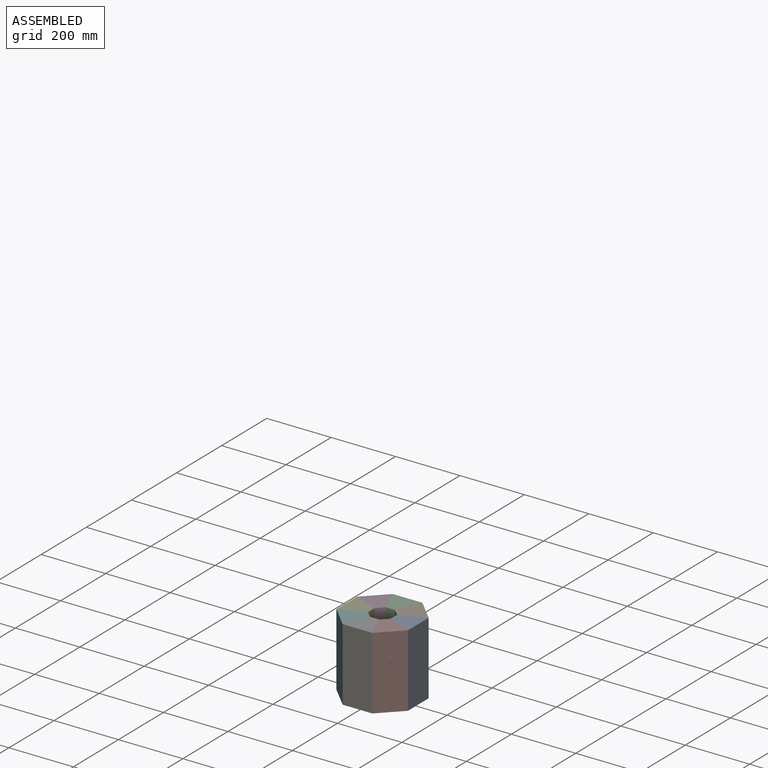
[diagram: assembled view]
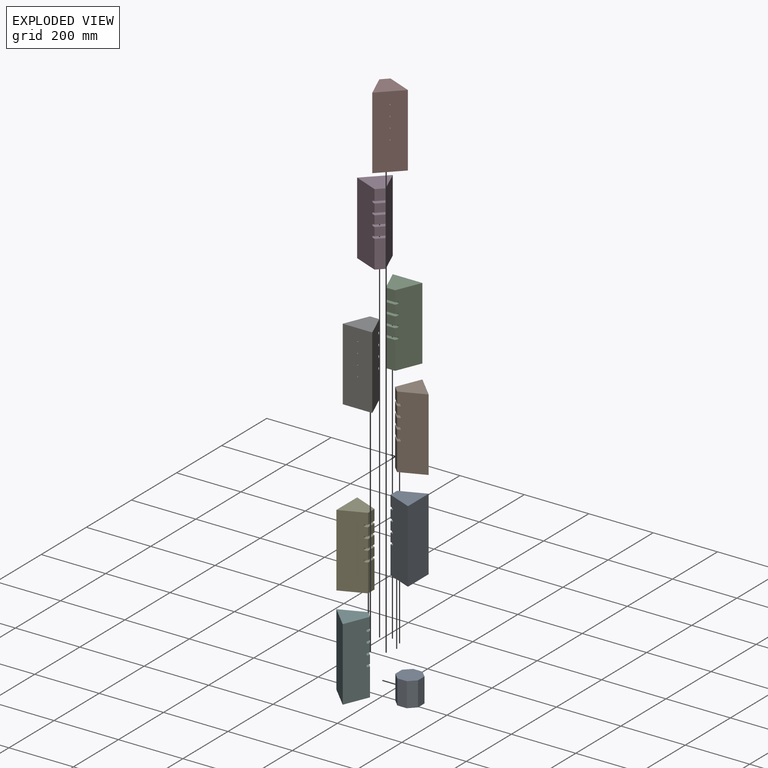
[diagram: exploded view]
GUIDED TOUR — FREECAD ASSEMBLY "OCT-CHMBR-A"

This assembly has 9 components, labeled P0..P8 below (a component is one placed body or linked part; the same part can appear more than once), held together by 8 modeled joints. A joint is a constraint between two components; its type names the relative motion it leaves free:
  FASTENED — locks the two components together rigidly (no relative motion).
Axis/direction vectors are unit vectors and 'through' points are millimeter coordinates, both in the assembly's world frame.

MATES
  1. FASTENED [Fixed] "Joint": P8 <-> P6, direction (0.000, 0.000, 1.000) through (-14.50, -35.00, 0.00) mm
  2. FASTENED [Fixed] "Joint001": P8 <-> P7, direction (0.000, 0.000, 1.000) through (14.50, -35.00, 0.00) mm
  3. FASTENED [Fixed] "Joint002": P8 <-> P0, direction (0.000, 0.000, 1.000) through (35.00, -14.50, 0.00) mm
  4. FASTENED [Fixed] "Joint003": P8 <-> P1, direction (0.000, 0.000, 1.000) through (35.00, 14.50, 0.00) mm
  5. FASTENED [Fixed] "Joint004": P2 <-> P8, direction (0.000, 0.000, 1.000) through (14.50, 35.00, 0.00) mm
  6. FASTENED [Fixed] "Joint005": P3 <-> P8, direction (0.000, 0.000, 1.000) through (-14.50, 35.00, 0.00) mm
  7. FASTENED [Fixed] "Joint006": P4 <-> P8, direction (0.000, 0.000, 1.000) through (-35.00, 14.50, 0.00) mm
  8. FASTENED [Fixed] "Joint007": P5 <-> P8, direction (0.000, 0.000, 1.000) through (-35.00, -14.50, 0.00) mm

ASSEMBLY ORDER
  1. P5 — the base component [order verified]
  2. P0 [order verified]
  3. P1 [order verified]
  4. P8 [order verified]
  5. P2 [order verified]
  6. P3 [order verified]
  7. P4 [order verified]
  8. P6 [order verified]
  9. P7 [order verified]
Order-tag legend:
  [order verified] — this step's position reverses a verified removal order: the component was checked to insert without passing through the ones already placed.

Of the 9 components, 9 carry a construction recipe — the FreeCAD feature program (sketches with constraints, then the solid features that consume them) that regenerates the part from scratch, quoted from this document or from the linked companion document it references; the rest are supplied as boundary geometry only. The tour below walks the components in assembly order: each is shown spotlighted twice — in the assembled view, then in the exploded view, where a leader line traces a displaced component back to its assembled socket (components that stay in place when exploded have no leader line; saturated green if recipe-attached, orange if geometry-only; every other component desaturated gray) — followed by its recipe or geometry summary and the mates that hold it.
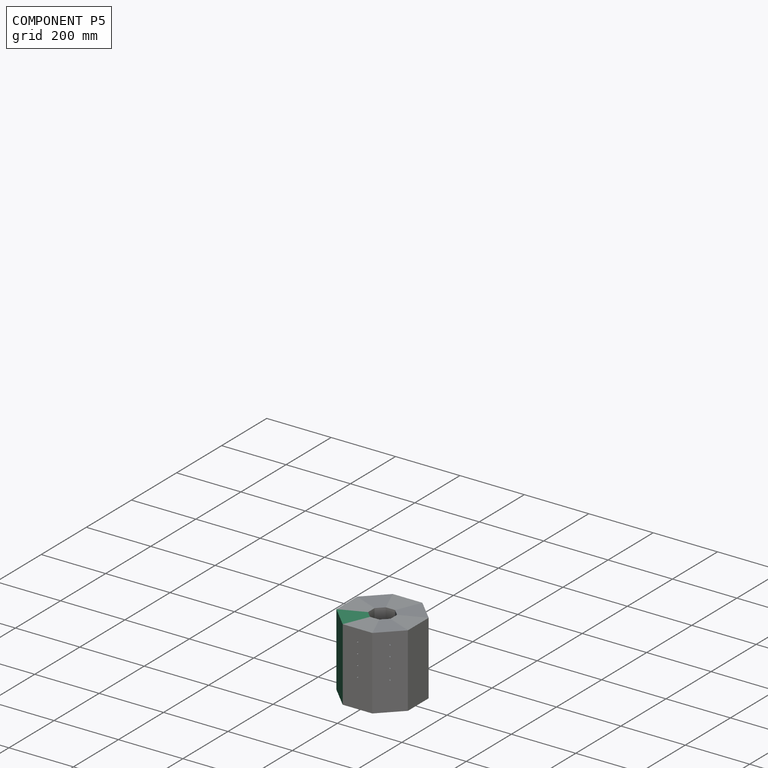
[diagram: component P5 — assembled]
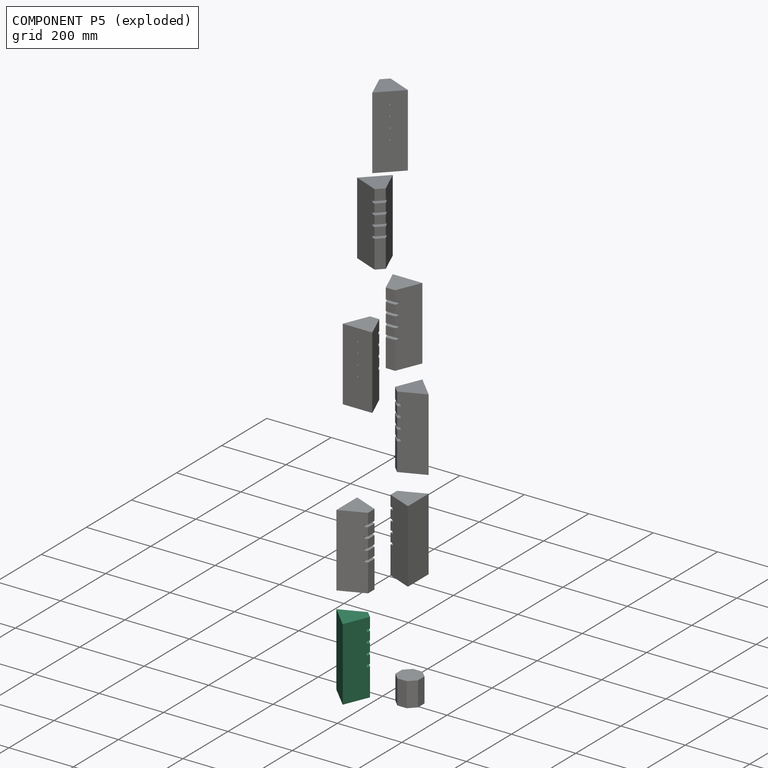
[diagram: component P5 — exploded]
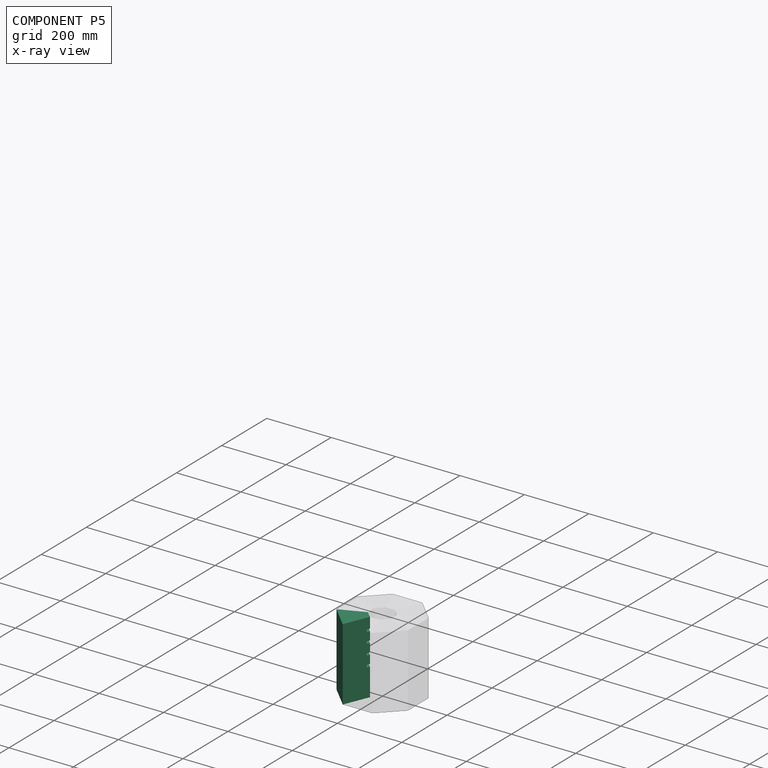
[diagram: component P5 — x-ray view]
COMPONENT P5 — same part as P0; its construction recipe is shown at P0.
Held by: FASTENED mate "Joint007" to P8.
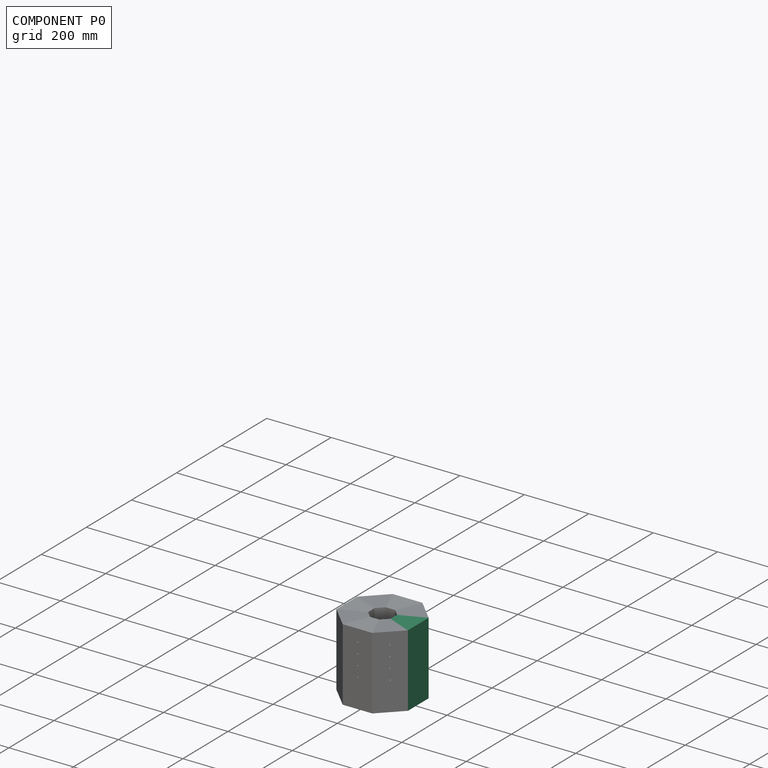
[diagram: component P0 — assembled]
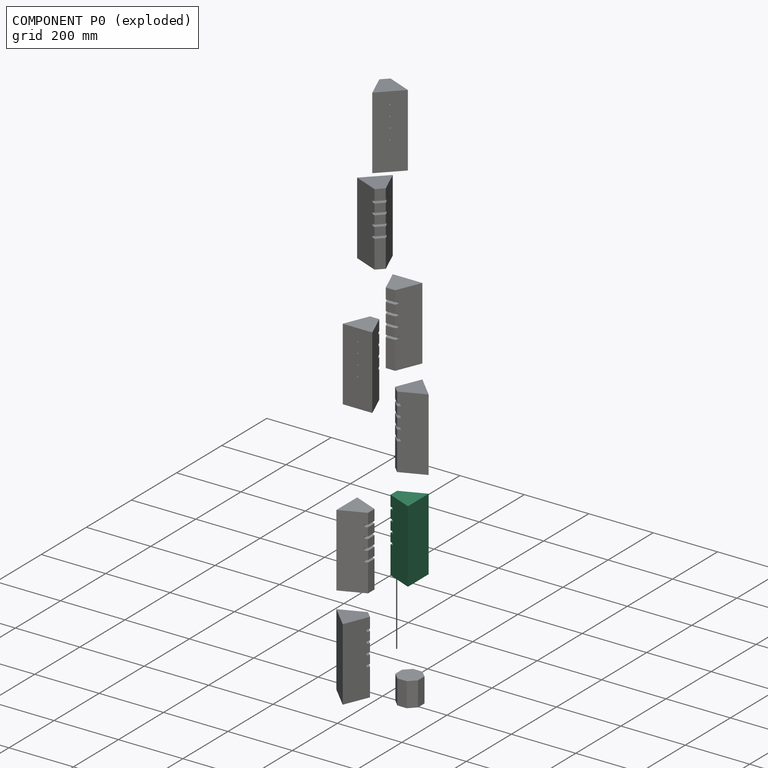
[diagram: component P0 — exploded]
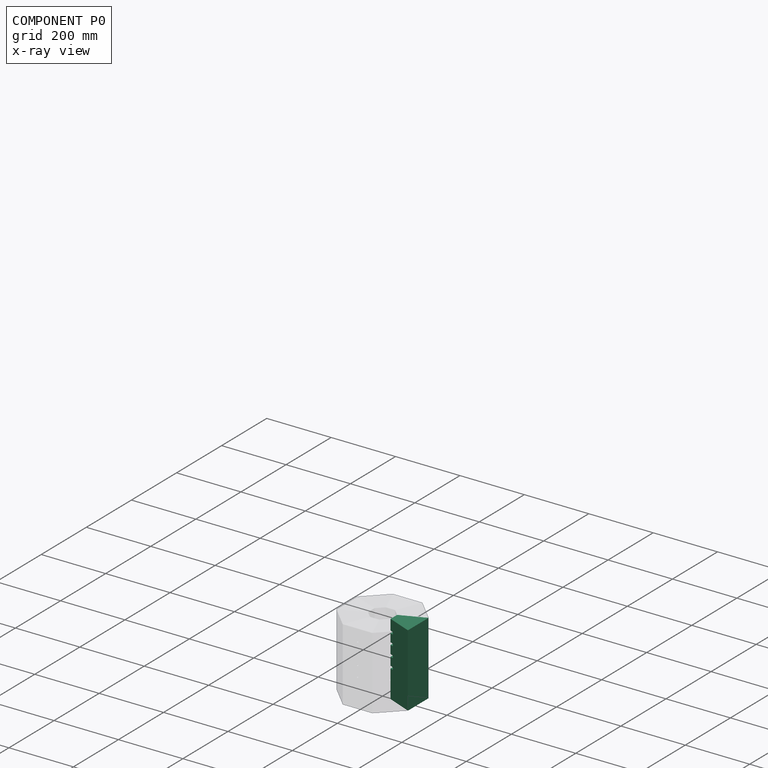
[diagram: component P0 — x-ray view]
COMPONENT P0 — recipe-attached ("OCT-CHBRK-AA", modeled in this document).
Held by: FASTENED mate "Joint002" to P8.
Construction recipe (the document's own serialized feature program — sketch geometry with constraints, then the solid features built on it; lengths are millimeters unless a unit is written):

FEATURE [Sketcher::SketchObject] Sketch
  ArcFitTolerance = 1e-06
  AttachmentSupport = -> [XY_Plane]
  FullyConstrained = true
  MakeInternals = false
  MapMode = 5
  expr: Constraints[53] = <<dims>>.brickDepth
  expr: Constraints[55] = <<dims>>.chamberDiameter
  sketch-geometry (20):
    g0: LineSegment StartX=45.9777 StartY=111 StartZ=0 EndX=-45.9777 EndY=111 EndZ=0
    g1: LineSegment [constr] StartX=-45.9777 StartY=111 StartZ=0 EndX=-111 EndY=45.9777 EndZ=0
    g2: LineSegment [constr] StartX=-111 StartY=45.9777 StartZ=0 EndX=-111 EndY=-45.9777 EndZ=0
    g3: LineSegment [constr] StartX=-111 StartY=-45.9777 StartZ=0 EndX=-45.9777 EndY=-111 EndZ=0
    g4: LineSegment [constr] StartX=-45.9777 StartY=-111 StartZ=0 EndX=45.9777 EndY=-111 EndZ=0
    g5: LineSegment [constr] StartX=45.9777 StartY=-111 StartZ=0 EndX=111 EndY=-45.9777 EndZ=0
    g6: LineSegment [constr] StartX=111 StartY=-45.9777 StartZ=0 EndX=111 EndY=45.9777 EndZ=0
    g7: LineSegment [constr] StartX=111 StartY=45.9777 StartZ=0 EndX=45.9777 EndY=111 EndZ=0
    g8: Circle [constr] CenterX=0 CenterY=0 CenterZ=0 NormalX=0 NormalY=0 NormalZ=1 AngleXU=0 Radius=120.146
    g9: LineSegment [constr] StartX=-14.4975 StartY=35 StartZ=0 EndX=-35 EndY=14.4975 EndZ=0
    g10: LineSegment [constr] StartX=-35 StartY=14.4975 StartZ=0 EndX=-35 EndY=-14.4975 EndZ=0
    g11: LineSegment [constr] StartX=-35 StartY=-14.4975 StartZ=0 EndX=-14.4975 EndY=-35 EndZ=0
    g12: LineSegment [constr] StartX=-14.4975 StartY=-35 StartZ=0 EndX=14.4975 EndY=-35 EndZ=0
    g13: LineSegment [constr] StartX=14.4975 StartY=-35 StartZ=0 EndX=35 EndY=-14.4975 EndZ=0
    g14: LineSegment [constr] StartX=35 StartY=-14.4975 StartZ=0 EndX=35 EndY=14.4975 EndZ=0
    g15: LineSegment [constr] StartX=35 StartY=14.4975 StartZ=0 EndX=14.4975 EndY=35 EndZ=0
    g16: LineSegment StartX=14.4975 StartY=35 StartZ=0 EndX=-14.4975 EndY=35 EndZ=0
    g17: Circle [constr] CenterX=0 CenterY=0 CenterZ=0 NormalX=0 NormalY=0 NormalZ=1 AngleXU=0 Radius=37.8837
    g18: LineSegment StartX=-45.9777 StartY=111 StartZ=0 EndX=-14.4975 EndY=35 EndZ=0
    g19: LineSegment StartX=14.4975 StartY=35 StartZ=0 EndX=45.9777 EndY=111 EndZ=0
  constraints (44):
    c: Coincident(g0,g1)
    c: Coincident(g1,g2)
    c: Coincident(g2,g3)
    c: Coincident(g3,g4)
    c: Coincident(g4,g5)
    c: Coincident(g5,g6)
    c: Coincident(g6,g7)
    c: Coincident(g7,g0)
    c: Equal(g0, g1-g7) x7
    c: PointOnObject(g0,g8)
    c: PointOnObject(g1,g8)
    c: PointOnObject(g2,g8)
    c: PointOnObject(g3,g8)
    c: PointOnObject(g4,g8)
    c: PointOnObject(g5,g8)
    c: PointOnObject(g6,g8)
    c: PointOnObject(g7,g8)
    c: Coincident(g8,g-1)
    c: Horizontal(g0)
    c: Coincident(g9,g10)
    c: Coincident(g10,g11)
    c: Coincident(g11,g12)
    c: Coincident(g12,g13)
    c: Coincident(g13,g14)
    c: Coincident(g14,g15)
    c: Coincident(g15,g16)
    c: Coincident(g16,g9)
    c: Equal(g9, g10-g16) x7
    c: PointOnObject(g9,g17)
    c: PointOnObject(g10,g17)
    c: PointOnObject(g11,g17)
    c: PointOnObject(g12,g17)
    c: PointOnObject(g13,g17)
    c: PointOnObject(g14,g17)
    c: PointOnObject(g15,g17)
    c: PointOnObject(g16,g17)
    c: Coincident(g17,g8)
    c: Coincident(g18,g0)
    c: Coincident(g18,g9)
    c: Coincident(g19,g15)
    c: Coincident(g19,g0)
    c: DistanceY(g9,g0) = 76
    c: Horizontal(g16)
    c: DistanceY(g11,g9) = 70
FEATURE [PartDesign::Pad] Pad
  Direction = (0,0,1)
  Length = 226
  Length2 = 10
  Profile = -> Sketch
  ReferenceAxis = -> Sketch [N_Axis]
  Suppressed = false
  Type = 0
  expr: Length = <<dims>>.brickHeight
FEATURE [Sketcher::SketchObject] Sketch001
  ArcFitTolerance = 1e-06
  AttachmentSupport = -> [YZ_Plane]
  FullyConstrained = true
  MakeInternals = false
  MapMode = 5
  Placement = pos=(0,0,0) rot=(0.57735,0.57735,0.57735;2.0944rad)
  expr: Constraints[6] = <<dims>>.loopDiameter / 2
  expr: Constraints[7] = <<dims>>.bottomGrooveHeight
  expr: Constraints[8] = <<dims>>.coilOD
  sketch-geometry (4):
    g0: ArcOfCircle CenterX=0 CenterY=90 CenterZ=0 NormalX=0 NormalY=0 NormalZ=1 AngleXU=0 Radius=3.52 StartAngle=1.5708 EndAngle=4.71239
    g1: ArcOfCircle CenterX=41.5 CenterY=90 CenterZ=0 NormalX=0 NormalY=0 NormalZ=1 AngleXU=0 Radius=3.52 StartAngle=4.71239 EndAngle=7.85398
    g2: LineSegment StartX=2e-16 StartY=93.52 StartZ=0 EndX=41.5 EndY=93.52 EndZ=0
    g3: LineSegment StartX=-6e-16 StartY=86.48 StartZ=0 EndX=41.5 EndY=86.48 EndZ=0
  constraints (10):
    c: Tangent(g0,g2) = 1.5708
    c: Tangent(g0,g3) = -1.5708
    c: Tangent(g1,g2) = 1.5708
    c: Tangent(g1,g3) = -1.5708
    c: Equal(g0,g1)
    c: Horizontal(g2)
    c: DistanceX(g-1,g1) = 41.5
    c: DistanceY(g-1,g1) = 90
    c: DistanceY(g0,g0) = 7.04
    c: PointOnObject(g0,g-2)
FEATURE [PartDesign::Pocket] Pocket  label="element groove"
  BaseFeature = -> Pad
  Direction = (-1,0,0)
  Length = 5
  Length2 = 5
  Midplane = true
  Profile = -> Sketch001
  ReferenceAxis = -> Sketch001 [N_Axis]
  Suppressed = false
  Type = 1
FEATURE [PartDesign::LinearPattern] LinearPattern
  BaseFeature = -> Pocket
  Direction = -> Z_Axis
  Length = 99
  Mode = 1
  Occurrences = 4
  Offset = 33
  Originals = -> [Pocket]
  Suppressed = false
  TransformMode = 0
  expr: Occurrences = <<dims>>.elementCount
  expr: Offset = <<dims>>.elementSpacing
FEATURE [PartDesign::Body] Body  label="OCT-CHBRK-AA"
  AllowCompound = false
  Group = -> [Sketch,Pad,Sketch001,Pocket,LinearPattern]
  Origin = -> Origin
  Tip = -> LinearPattern
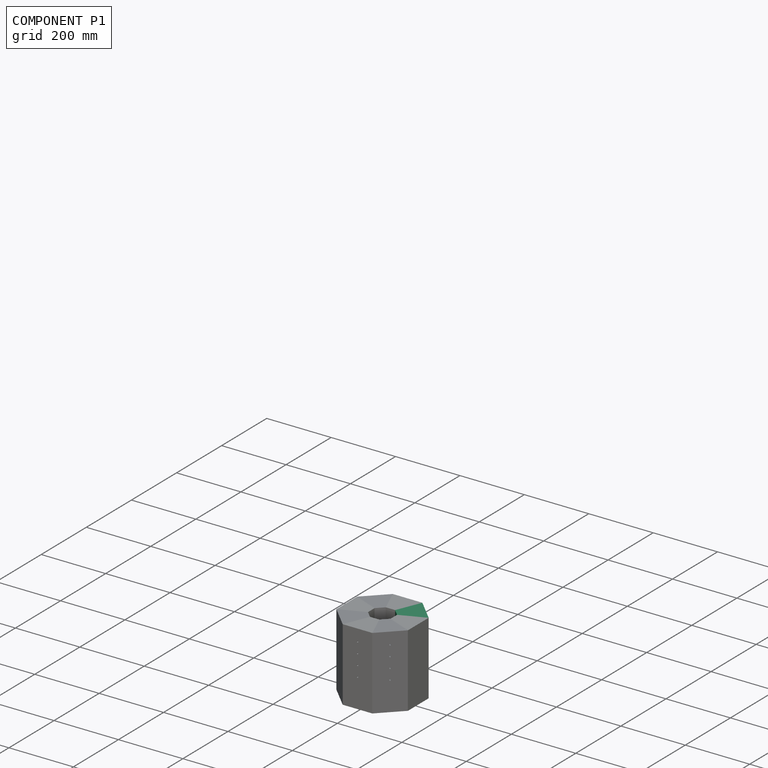
[diagram: component P1 — assembled]
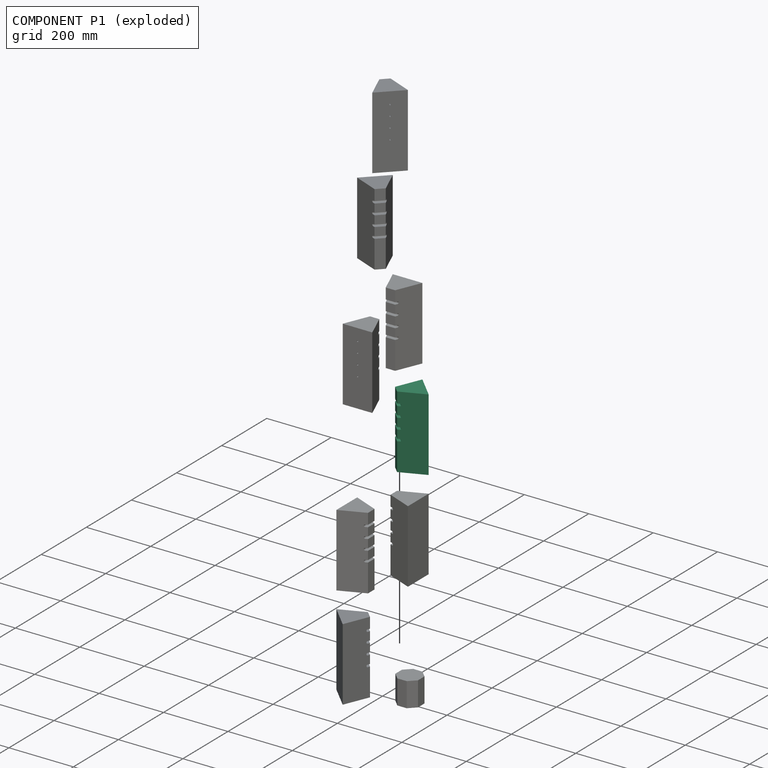
[diagram: component P1 — exploded]
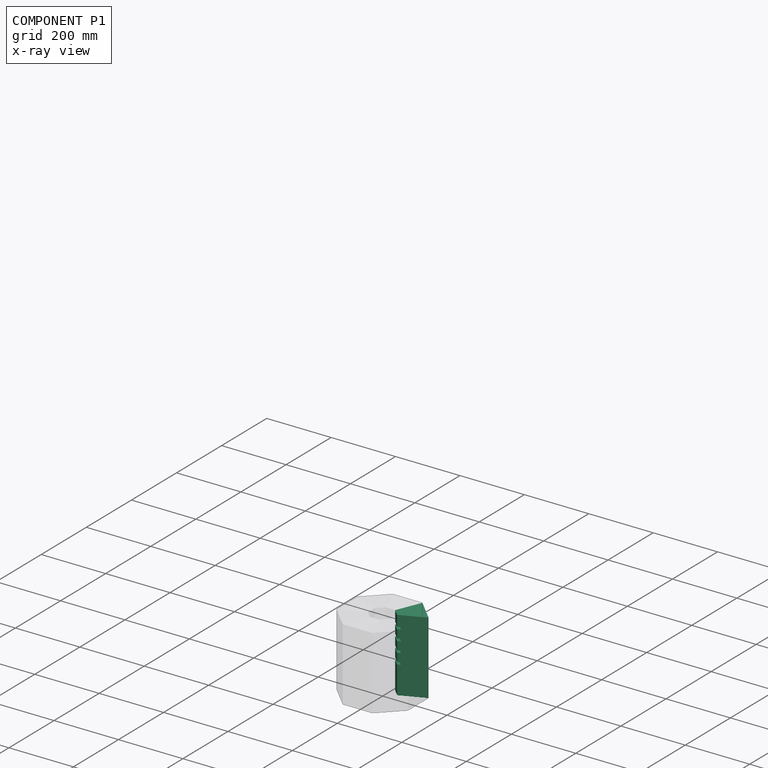
[diagram: component P1 — x-ray view]
COMPONENT P1 — same part as P0; its construction recipe is shown at P0.
Held by: FASTENED mate "Joint003" to P8.
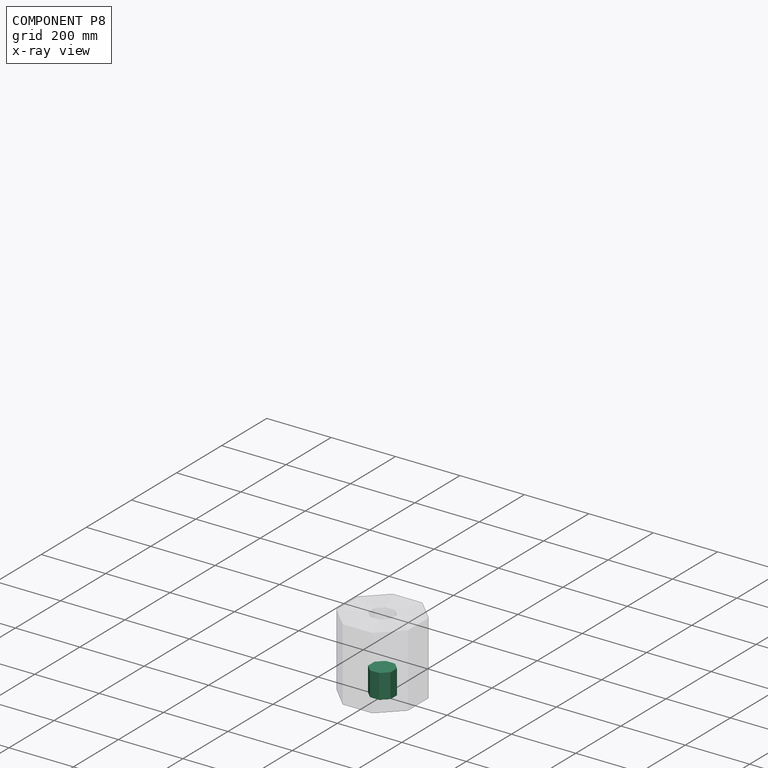
[diagram: component P8 — x-ray view]
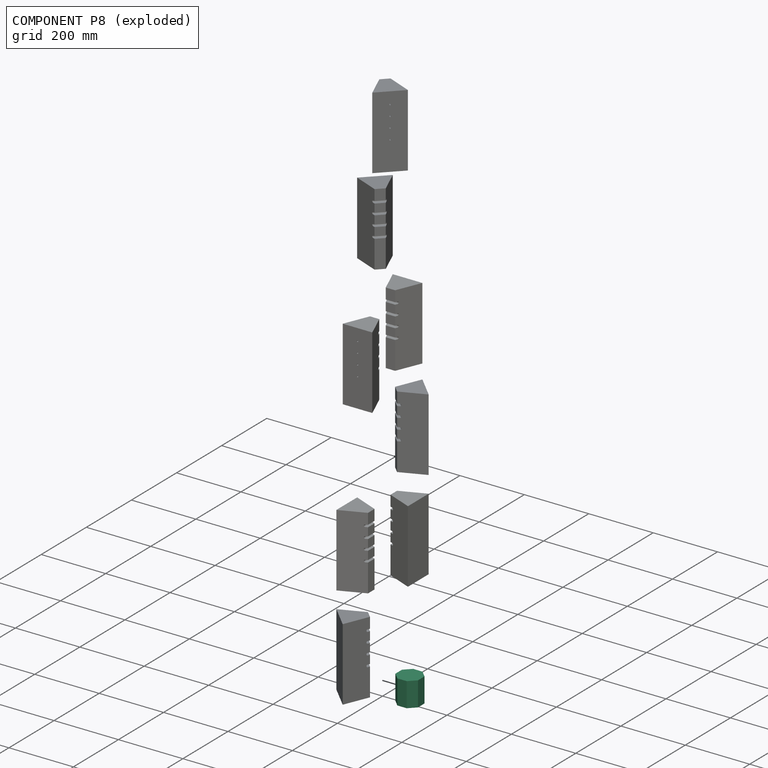
[diagram: component P8 — exploded]
COMPONENT P8 — recipe-attached ("OCT-CHBRK-CA", modeled in this document).
Held by: FASTENED mate "Joint" to P6; FASTENED mate "Joint001" to P7; FASTENED mate "Joint002" to P0; FASTENED mate "Joint003" to P1; FASTENED mate "Joint004" to P2; FASTENED mate "Joint005" to P3; FASTENED mate "Joint006" to P4; FASTENED mate "Joint007" to P5.
Construction recipe (the document's own serialized feature program — sketch geometry with constraints, then the solid features built on it; lengths are millimeters unless a unit is written):

FEATURE [Sketcher::SketchObject] Sketch003
  ArcFitTolerance = 1e-06
  AttachmentSupport = -> [XY_Plane002]
  FullyConstrained = true
  MakeInternals = false
  MapMode = 5
  expr: Constraints[25] = <<dims>>.chamberDiameter
  sketch-geometry (9):
    g0: LineSegment StartX=-14.4975 StartY=35 StartZ=0 EndX=-35 EndY=14.4975 EndZ=0
    g1: LineSegment StartX=-35 StartY=14.4975 StartZ=0 EndX=-35 EndY=-14.4975 EndZ=0
    g2: LineSegment StartX=-35 StartY=-14.4975 StartZ=0 EndX=-14.4975 EndY=-35 EndZ=0
    g3: LineSegment StartX=-14.4975 StartY=-35 StartZ=0 EndX=14.4975 EndY=-35 EndZ=0
    g4: LineSegment StartX=14.4975 StartY=-35 StartZ=0 EndX=35 EndY=-14.4975 EndZ=0
    g5: LineSegment StartX=35 StartY=-14.4975 StartZ=0 EndX=35 EndY=14.4975 EndZ=0
    g6: LineSegment StartX=35 StartY=14.4975 StartZ=0 EndX=14.4975 EndY=35 EndZ=0
    g7: LineSegment StartX=14.4975 StartY=35 StartZ=0 EndX=-14.4975 EndY=35 EndZ=0
    g8: Circle [constr] CenterX=0 CenterY=0 CenterZ=0 NormalX=0 NormalY=0 NormalZ=1 AngleXU=0 Radius=37.8837
  constraints (20):
    c: Coincident(g0,g1)
    c: Coincident(g1,g2)
    c: Coincident(g2,g3)
    c: Coincident(g3,g4)
    c: Coincident(g4,g5)
    c: Coincident(g5,g6)
    c: Coincident(g6,g7)
    c: Coincident(g7,g0)
    c: Equal(g0, g1-g7) x7
    c: PointOnObject(g0,g8)
    c: PointOnObject(g1,g8)
    c: PointOnObject(g2,g8)
    c: PointOnObject(g3,g8)
    c: PointOnObject(g4,g8)
    c: PointOnObject(g5,g8)
    c: PointOnObject(g6,g8)
    c: PointOnObject(g7,g8)
    c: Coincident(g8,g-1)
    c: Horizontal(g7)
    c: DistanceY(g2,g0) = 70
FEATURE [PartDesign::Pad] Pad001
  Direction = (0,0,1)
  Length = 76
  Length2 = 10
  Profile = -> Sketch003
  ReferenceAxis = -> Sketch003 [N_Axis]
  Suppressed = false
  Type = 0
  expr: Length = <<dims>>.baseHeight
FEATURE [PartDesign::Body] Body002  label="OCT-CHBRK-CA"
  AllowCompound = false
  Group = -> [Sketch003,Pad001]
  Origin = -> Origin002
  Tip = -> Pad001
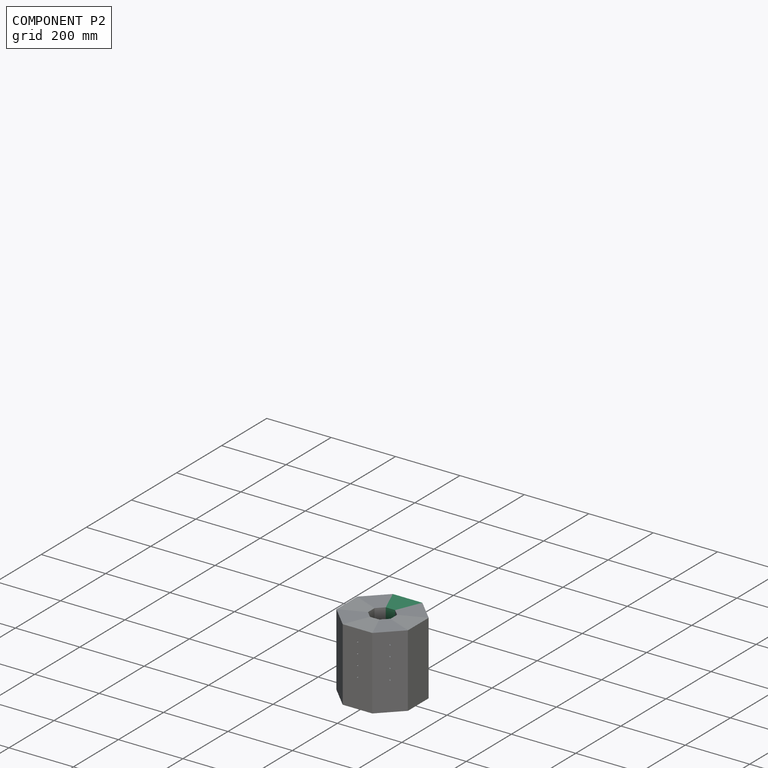
[diagram: component P2 — assembled]
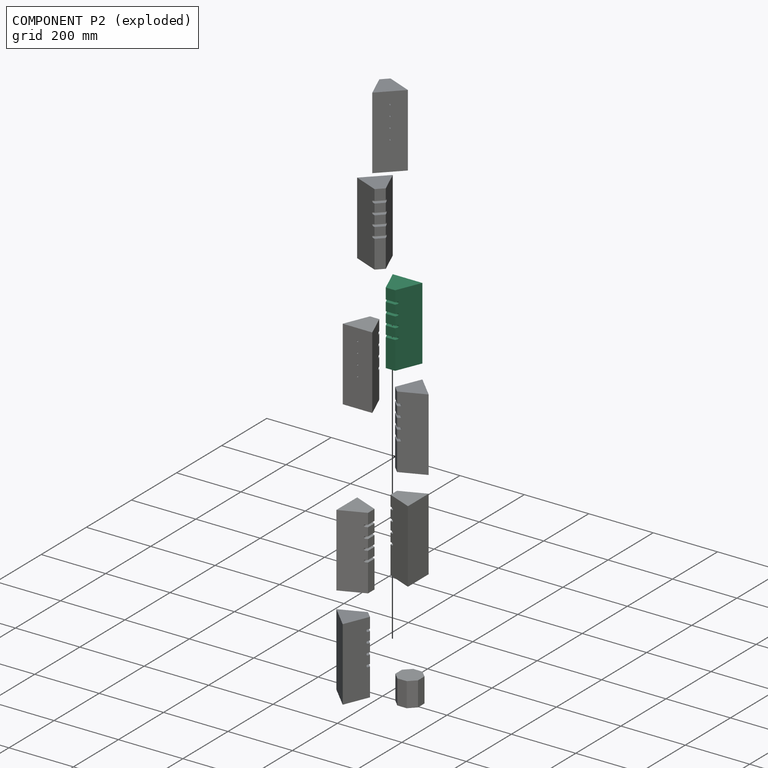
[diagram: component P2 — exploded]
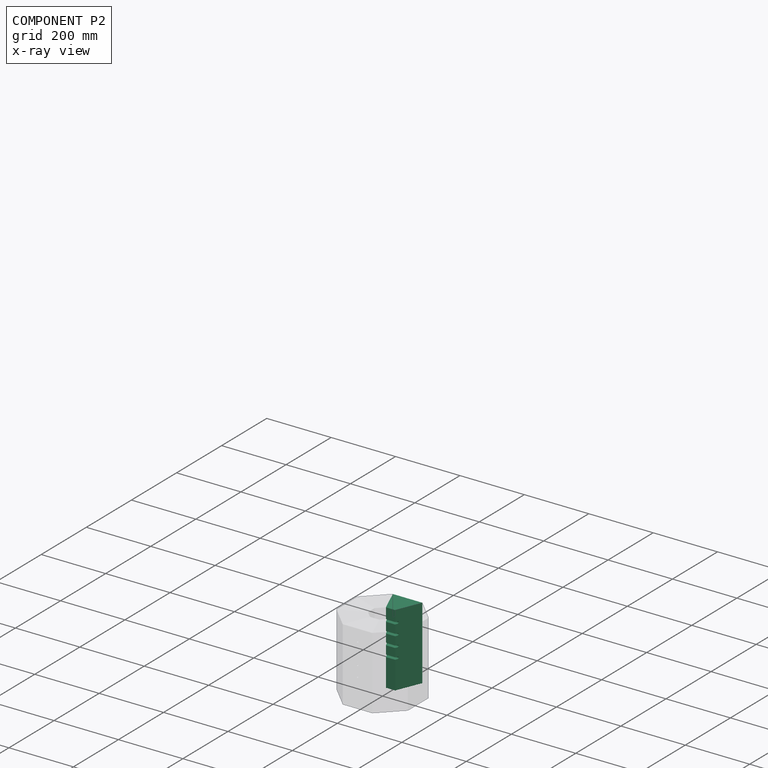
[diagram: component P2 — x-ray view]
COMPONENT P2 — same part as P0; its construction recipe is shown at P0.
Held by: FASTENED mate "Joint004" to P8.
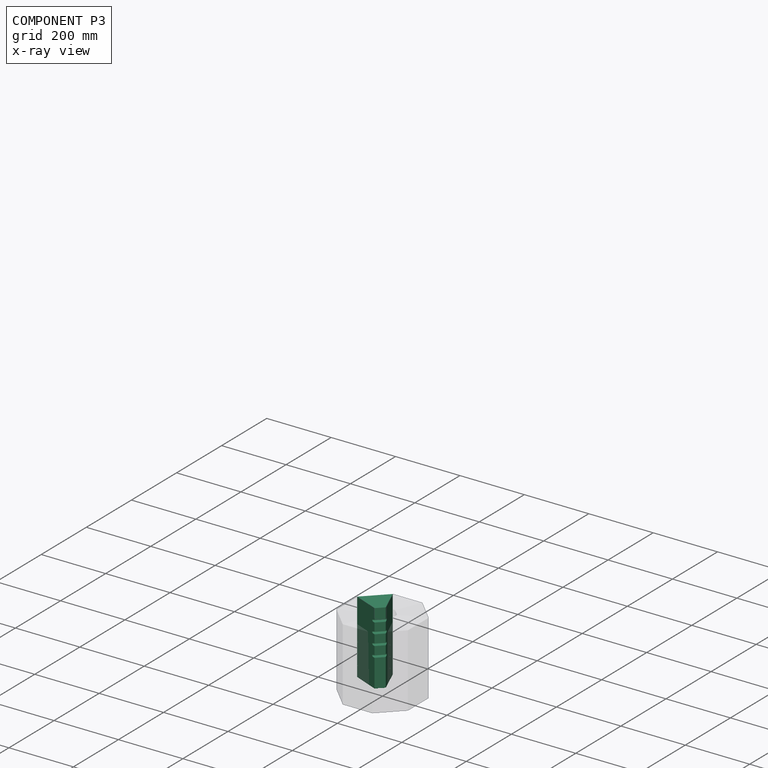
[diagram: component P3 — x-ray view]
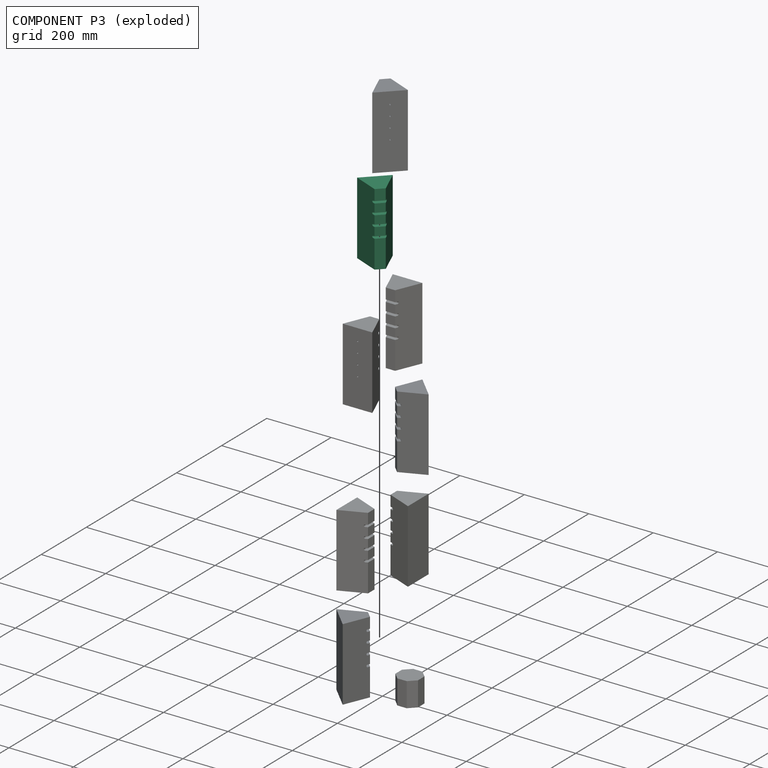
[diagram: component P3 — exploded]
COMPONENT P3 — same part as P0; its construction recipe is shown at P0.
Held by: FASTENED mate "Joint005" to P8.
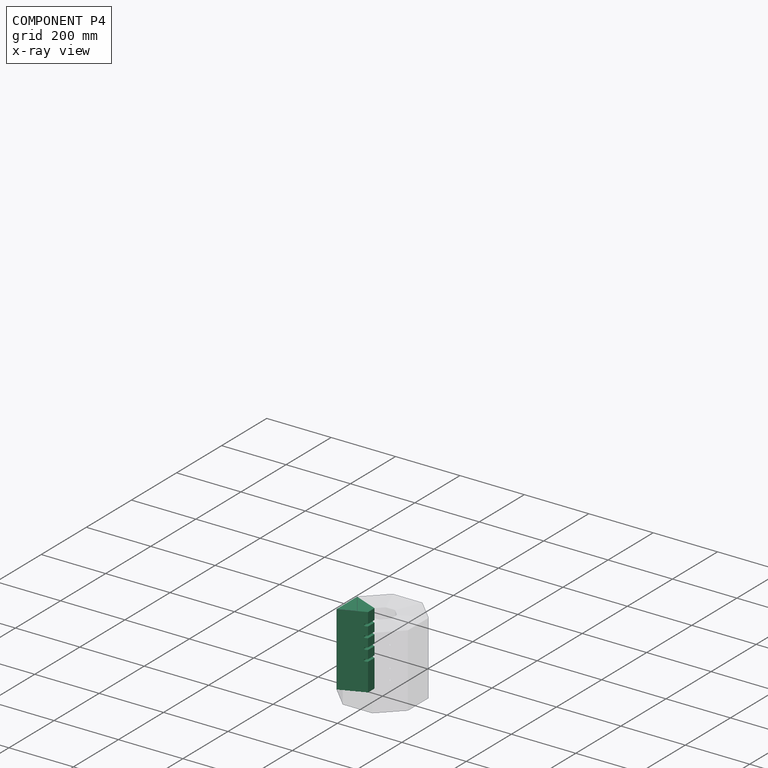
[diagram: component P4 — x-ray view]
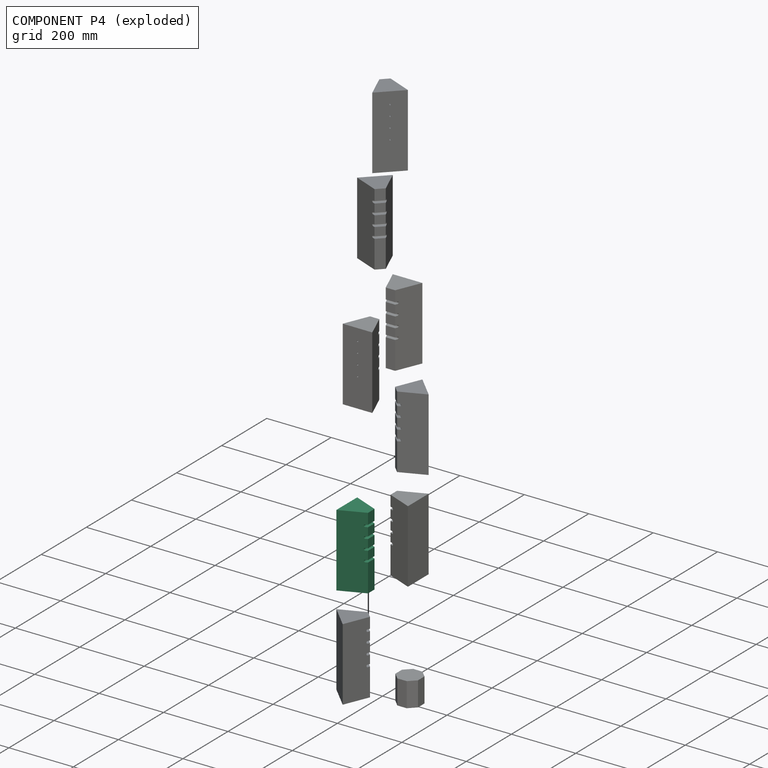
[diagram: component P4 — exploded]
COMPONENT P4 — same part as P0; its construction recipe is shown at P0.
Held by: FASTENED mate "Joint006" to P8.
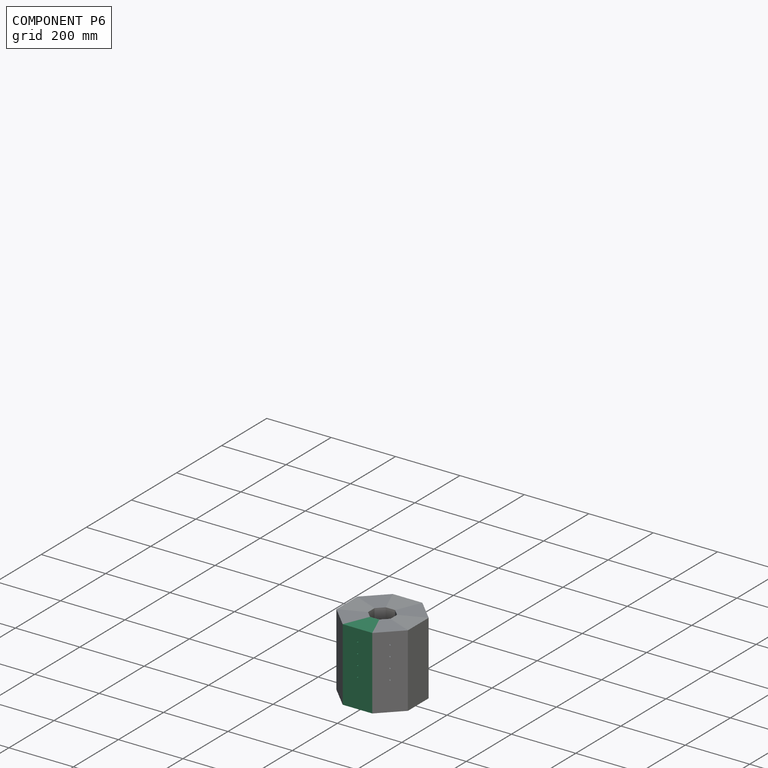
[diagram: component P6 — assembled]
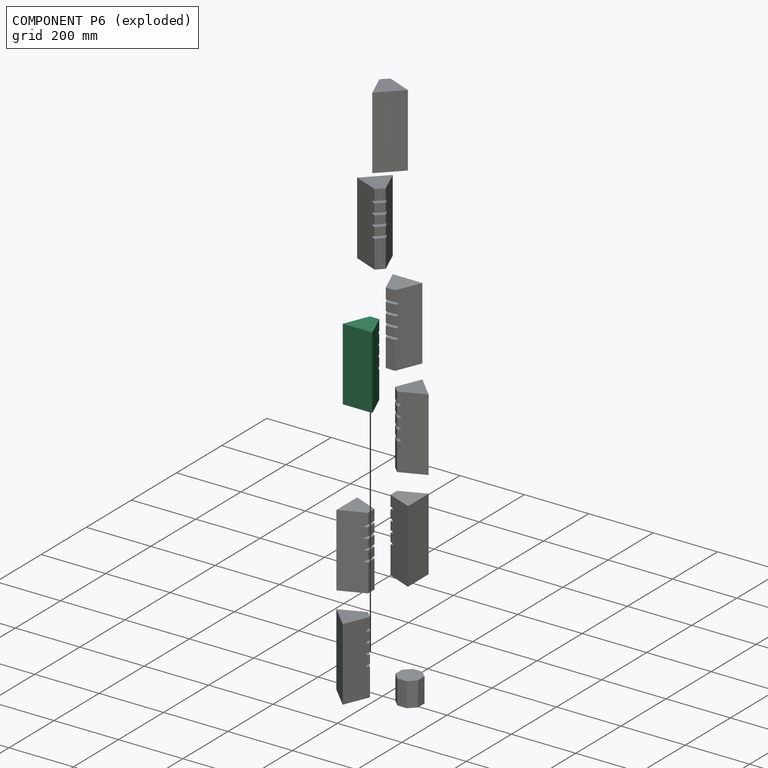
[diagram: component P6 — exploded]
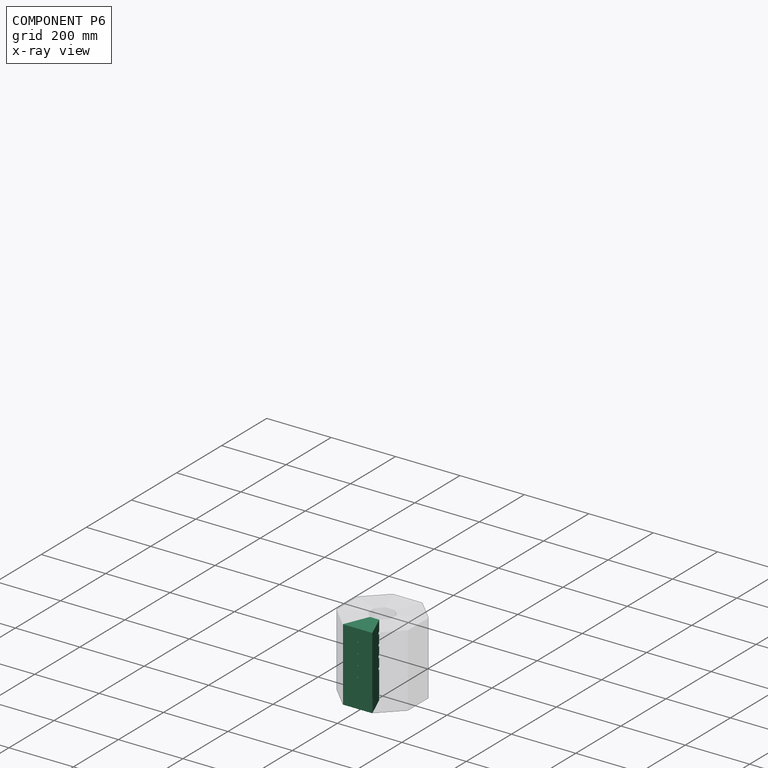
[diagram: component P6 — x-ray view]
COMPONENT P6 — recipe-attached ("OCT-CHBRK-BA", modeled in this document).
Held by: FASTENED mate "Joint" to P8.
Construction recipe (the document's own serialized feature program — sketch geometry with constraints, then the solid features built on it; lengths are millimeters unless a unit is written):

FEATURE [PartDesign::FeatureBase] Clone
  BaseFeature = -> Body
  Suppressed = false
FEATURE [Sketcher::SketchObject] Sketch002
  ArcFitTolerance = 1e-06
  AttachmentSupport = -> [YZ_Plane001]
  FullyConstrained = true
  MakeInternals = false
  MapMode = 5
  Placement = pos=(0,0,0) rot=(0.57735,0.57735,0.57735;2.0944rad)
  expr: Constraints[12] = <<dims>>.chamberDiameter / 2
  expr: Constraints[14] = <<dims>>.barDiameter / 2
  expr: Constraints[15] = <<dims>>.heaterWireDiameter + 2 * <<dims>>.nutThickness + 2 mm
  expr: Constraints[16] = <<dims>>.bottomGrooveHeight
  expr: Constraints[17] = <<dims>>.brickDepth
  sketch-geometry (6):
    g0: LineSegment StartX=35 StartY=90 StartZ=0 EndX=111 EndY=90 EndZ=0
    g1: LineSegment StartX=111 StartY=90 StartZ=0 EndX=111 EndY=92 EndZ=0
    g2: LineSegment StartX=111 StartY=92 StartZ=0 EndX=46.02 EndY=92 EndZ=0
    g3: LineSegment StartX=46.02 StartY=92 StartZ=0 EndX=46.02 EndY=95 EndZ=0
    g4: LineSegment StartX=46.02 StartY=95 StartZ=0 EndX=35 EndY=95 EndZ=0
    g5: LineSegment StartX=35 StartY=95 StartZ=0 EndX=35 EndY=90 EndZ=0
  constraints (18):
    c: Horizontal(g0)
    c: Coincident(g0,g1)
    c: Coincident(g1,g2)
    c: Horizontal(g2)
    c: Coincident(g2,g3)
    c: Coincident(g3,g4)
    c: Horizontal(g4)
    c: Coincident(g4,g5)
    c: Coincident(g5,g0)
    c: Vertical(g1)
    c: Vertical(g3)
    c: Vertical(g5)
    c: DistanceX(g-1,g0) = 35
    c: DistanceY(g5,g5) = 5
    c: DistanceY(g1,g1) = 2
    c: DistanceX(g4,g4) = 11.02
    c: DistanceY(g-1,g0) = 90
    c: DistanceX(g4,g1) = 76
FEATURE [PartDesign::Groove] Groove
  Angle = 360
  Angle2 = 60
  Axis = (0,1,0)
  Base = (0,35,90)
  BaseFeature = -> Clone
  Profile = -> Sketch002
  ReferenceAxis = -> Sketch002 [Edge1]
  Suppressed = false
  Type = 0
FEATURE [PartDesign::LinearPattern] LinearPattern001
  BaseFeature = -> Groove
  Direction = -> Z_Axis001
  Length = 99
  Mode = 1
  Occurrences = 4
  Offset = 33
  Originals = -> [Groove]
  Suppressed = false
  TransformMode = 0
  expr: Occurrences = <<dims>>.elementCount
  expr: Offset = <<dims>>.elementSpacing
FEATURE [PartDesign::Body] Body001  label="OCT-CHBRK-BA"
  AllowCompound = false
  Group = -> [Clone,Sketch002,Groove,LinearPattern001]
  Origin = -> Origin001
  Tip = -> LinearPattern001
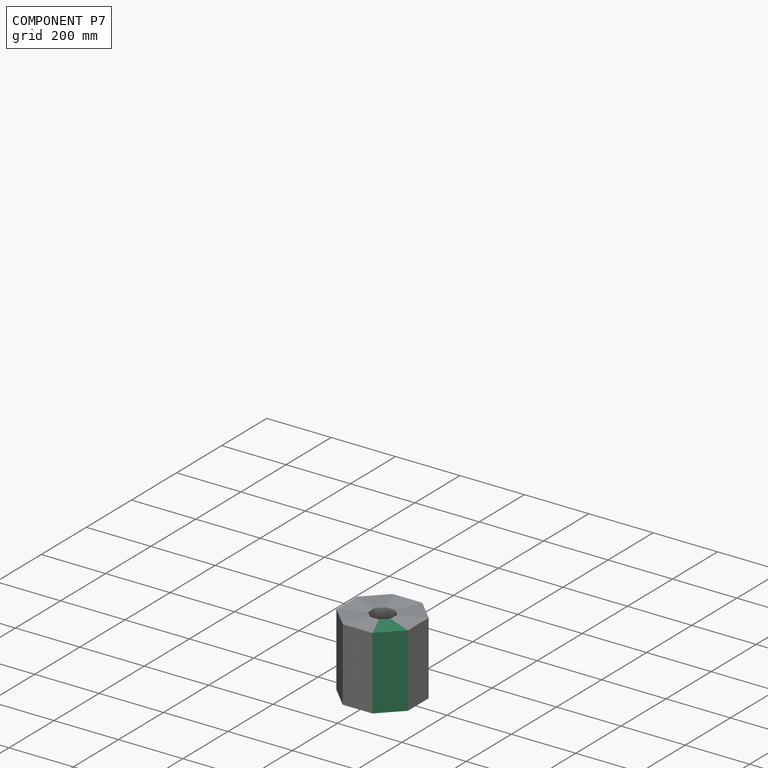
[diagram: component P7 — assembled]
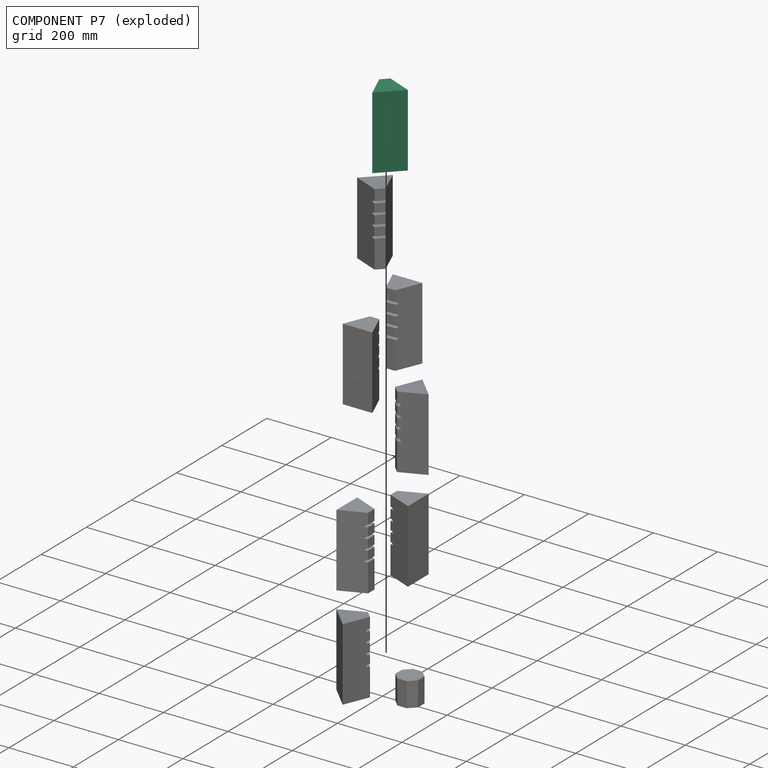
[diagram: component P7 — exploded]
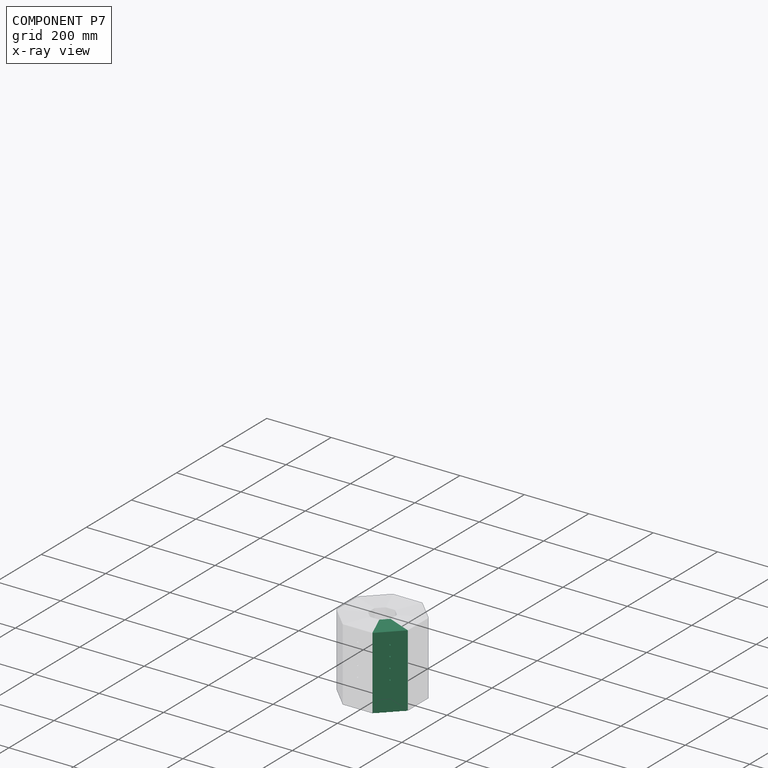
[diagram: component P7 — x-ray view]
COMPONENT P7 — same part as P6; its construction recipe is shown at P6.
Held by: FASTENED mate "Joint001" to P8.
PROVENANCE & LICENSES
Assembly and component geometry: a FreeCAD (.FCStd) document from a public repository crawl; components, placements and joints were extracted with FreeCAD and each solid tessellated.
Construction recipes: the document's own serialized feature recipes (and, for linked parts, the recipes of companion documents from the same project).
License: mit.
Joints: native FreeCAD joints and A2plus constraints are mapped to standard mate types.
Verification: 9 of this assembly's 9 components carry a construction recipe (9 from this document itself); the rest are geometry-only. Every component's tessellation passed the extraction mesh gates (mesh-volume checksum against the B-rep where available, bounding-box inflation <= 2%).
Renders: orthographic iso camera (az 35 / el 25); the floor grid conveys scale (grid pitch printed in each image; no ruler). In the exploded view each component is displaced by its stored offset vector: the offsets alone carry the explosion direction (mate normal/axis signs are not orientation cues and do not encode it), and separation distances are assigned per mate-chain, not proportionally to assembly-order depth.
